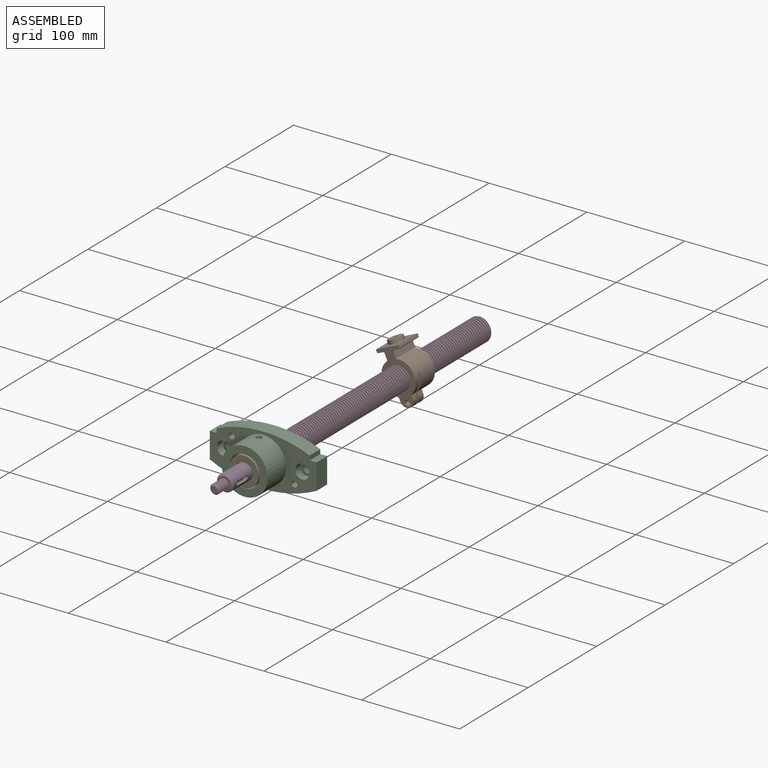
[diagram: assembled view]
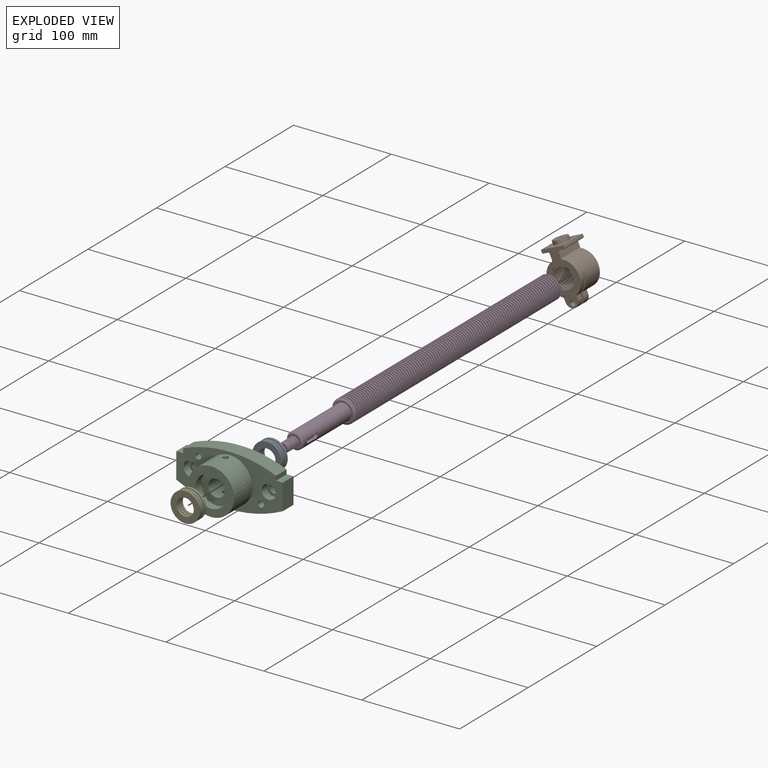
[diagram: exploded view]
GUIDED TOUR — MATED ASSEMBLY (Onshape document 585b79890dd57310976314a2, AutoMate assembly 585b79890dd57310976314a2_30762b4a6ced9e61a205f3cd_0f31b0dcdb93d55b40115a90_default)

This assembly has 5 components, labeled P0..P4 below (a component is one placed occurrence of a part; the same part can appear more than once), held together by 4 mates. A mate is a constraint between two components; its type names the relative motion it leaves free:
  CYLINDRICAL — leaves both rotation about and translation along the listed axis free,
  FASTENED — locks the two components together rigidly (no relative motion),
  REVOLUTE — leaves rotation about the listed axis free (a hinge).
Axis/direction vectors are unit vectors and 'through' points are millimeter coordinates, both in the assembly's world frame.

MATES
  1. REVOLUTE "Revolute 1": P0 <-> P2, axis (0.000, -1.000, 0.000) through (0.00, -10.00, 0.00) mm
  2. FASTENED "Fastened 1": P3 <-> P0, direction (0.000, -1.000, 0.000) through (0.00, -1.00, 0.00) mm
  3. FASTENED "Fastened 2": P2 <-> P4, direction (0.000, -1.000, 0.000) through (0.00, -34.50, 0.00) mm
  4. CYLINDRICAL "Cylindrical 1": P3 <-> P1, axis (0.000, -1.000, 0.000) through (0.00, 150.50, 0.00) mm

ASSEMBLY ORDER
  1. P0 — the base component [order heuristic]
  2. P2 [order heuristic]
  3. P3 [order heuristic]
  4. P1 [order heuristic]
  5. P4 [order heuristic]
Order-tag legend:
  [order heuristic] — this assembly is geometrically interlocked (no collision-free removal order exists), so components are listed in mate-graph order; insertion feasibility is not verified.

Of the 5 components, 3 carry the full construction recipe — the FeatureScript program that regenerates the part's solid from scratch; the rest are supplied as boundary geometry only.
Each toured component is shown spotlighted twice — in the assembled view, then in the exploded view, where a leader line traces a displaced component back to its assembled socket (saturated green if recipe-attached, orange if geometry-only; every other component desaturated gray) — followed by its recipe or geometry summary and the mates that hold it.
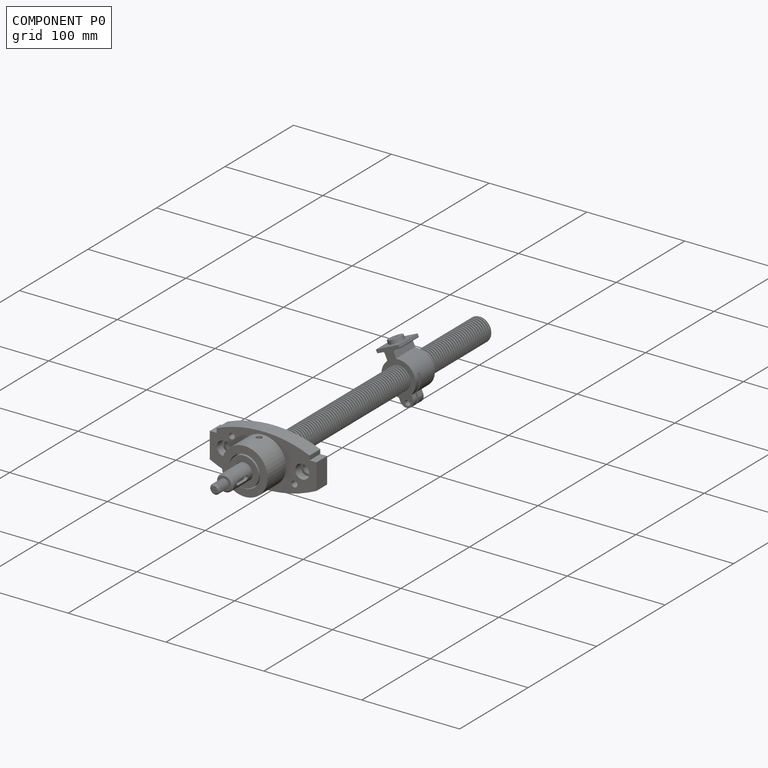
[diagram: component P0 — assembled]
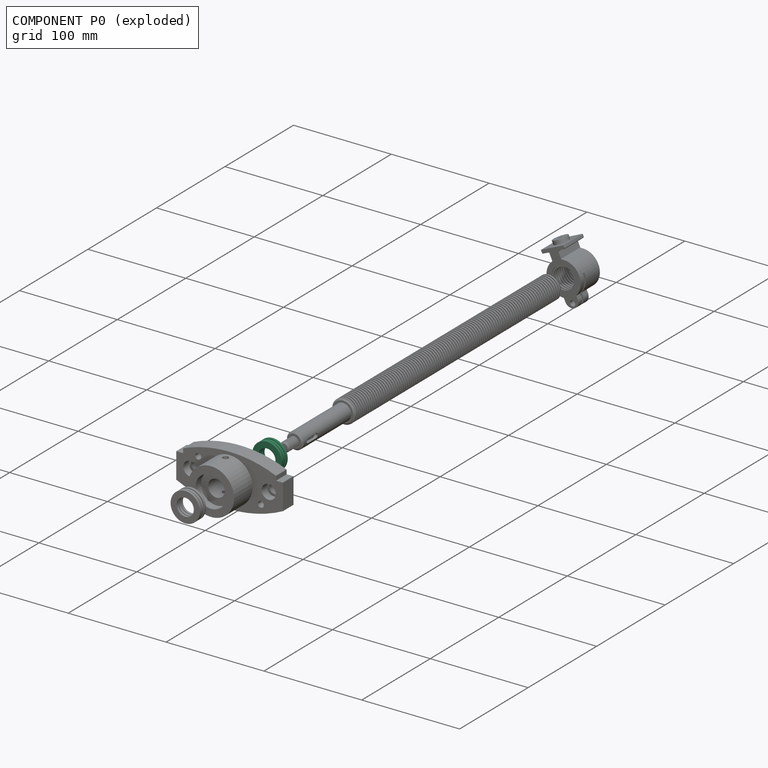
[diagram: component P0 — exploded]
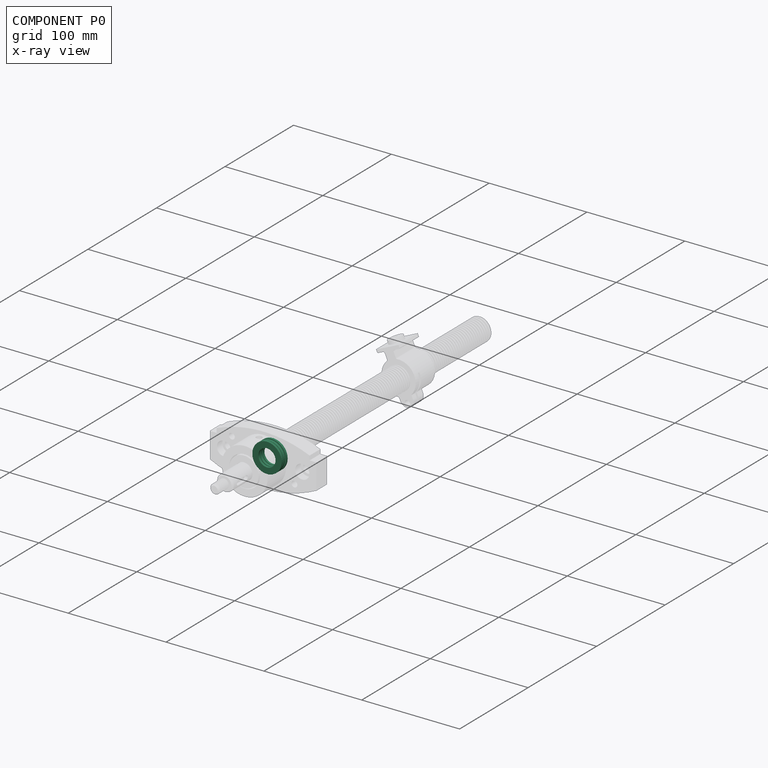
[diagram: component P0 — x-ray view]
COMPONENT P0 — recipe-attached (CADFS 00399992, mesh-verified: the recipe's output STEP matches this component's geometry to below the mesh-comparison resolution (tessellation chordal tolerance ~0.0651 mm)).
Held by: REVOLUTE mate "Revolute 1" to P2; FASTENED mate "Fastened 1" to P3.
Construction recipe (FeatureScript — the CAD program that rebuilds this solid; sketch coordinates are in the units given by the * unit suffixes, e.g. mm):

FeatureScript 2559;
import(path : "onshape/std/geometry.fs", version : "2559.0");
import(path : "onshape/std/common.fs", version : "2559.0");
const mm = millimeter;
const VERTEX = EntityType.VERTEX;
const EDGE = EntityType.EDGE;
const FACE = EntityType.FACE;
const BODY = EntityType.BODY;
function v(x, y){return vector(x, y);}
function OD(order){return orderDisambiguation(order);}
function OSD(set){return originalSetDisambiguation(set);}
function TD(topology){return topologyDisambiguation(topology);}
function TDD(query){return trueDependencyDisambiguation(query);}
function sQuery(a, b, c) {return sketchEntityQuery(a, b, c);}

annotation { "Feature Type Name" : "Feature", "Feature Type Description" : "" }
export const myFeature = defineFeature(function(context is Context, id is Id, definition is map)
    precondition{}
    {
        {
            var Q0;
            Q0=qCreatedBy(makeId("Front.planeOp"),FACE);
            var sketch = newSketch(context, id + "F0", { "sketchPlane" : qUnion([Q0])});
            skCircle(sketch, "E0", {"center": v(0, 0) * mm, "radius": 8.75 * mm});
            skCircle(sketch, "E1", {"center": v(0, 0) * mm, "radius": 14.65 * mm});
            skSolve(sketch);
        }
        {
            var Q0;
            Q0 = qSketchRegion(id + "F0", true);
            extrude(context, id + "F1", {"entities" : qUnion([Q0]), "depth" : 2.5 * mm, "symmetric" : true});
        }
        {
            var Q0;
            Q0=qCreatedBy(makeId("Front.planeOp"),FACE);
            var sketch = newSketch(context, id + "F2", { "sketchPlane" : qUnion([Q0])});
            skArc(sketch, "E2", {"start": v(0, 9.2) * mm, "mid": v(2.5, 11.7) * mm, "end": v(0, 14.2) * mm});
            skLineSegment(sketch, "E3", {"start": v(0, 14.2) * mm, "end": v(0, 9.2) * mm});
            skLineSegment(sketch, "E4", {"start": v(0, 11.7) * mm, "end": v(2.5, 11.7) * mm, "construction": true});
            skLineSegment(sketch, "E5", {"start": v(0, 8.75) * mm, "end": v(0, 14.65) * mm, "construction": true});
            skSolve(sketch);
        }
        {
            var Q0;
            Q0 = qSketchRegion(id + "F2", true);
            var Q1;
            Q1=sQuery(id+"F2.wireOp",EDGE,"E3");
            revolve(context, id + "F3", {"operationType" : NewBodyOperationType.ADD, "entities" : qUnion([Q0]), "axis" : qUnion([Q1]), "revolveType" : RevolveType.FULL});
        }
        {
            var Q0;
            Q0=makeQuery(id+"F1.opExtrude","SWEPT_BODY",BODY,{"disambiguationData":[OSD([sQuery(id+"F0.wireOp",EDGE,"E0"),sQuery(id+"F0.wireOp",EDGE,"E1")])]});
            var Q1;
            Q1=makeQuery(id+"F1.opExtrude","CAP_EDGE",EDGE,{"disambiguationData":[OSD([sQuery(id+"F0.wireOp",EDGE,"E1")])],"isStart":false});
            circularPattern(context, id + "F4", {"operationType" : NewBodyOperationType.ADD, "entities" : qUnion([Q0]), "axis" : qUnion([Q1]), "angle" : 360 * degree, "instanceCount" : 13, "equalSpace" : true, "computeTransformsWithoutBuiltin" : true});
        }
        {
            var Q0;
            Q0=qCreatedBy(makeId("Right.planeOp"),FACE);
            var sketch = newSketch(context, id + "F5", { "sketchPlane" : qUnion([Q0])});
            skLineSegment(sketch, "E6", {"start": v(2.2, 15) * mm, "end": v(4.5, 15) * mm});
            skLineSegment(sketch, "E7", {"start": v(4.5, 15) * mm, "end": v(4.5, 8.75) * mm});
            skLineSegment(sketch, "E8", {"start": v(0, 11.7) * mm, "end": v(0, 0) * mm, "construction": true});
            skLineSegment(sketch, "E9", {"start": v(2.2, 8.75) * mm, "end": v(4.5, 8.75) * mm});
            skLineSegment(sketch, "E10", {"start": v(0, 0) * mm, "end": v(4.5, 0) * mm, "construction": true});
            skLineSegment(sketch, "E11.MirrorCS", {"start": v(-2.2, 15) * mm, "end": v(-4.5, 15) * mm});
            skLineSegment(sketch, "E12.MirrorCS", {"start": v(-4.5, 15) * mm, "end": v(-4.5, 8.75) * mm});
            skLineSegment(sketch, "E13.MirrorCS", {"start": v(-2.2, 8.75) * mm, "end": v(-4.5, 8.75) * mm});
            skPoint(sketch, "E14.MirrorCS.end.orphan", {"position": v(-2.2, 15) * mm});
            skPoint(sketch, "E15.MirrorCS.start.orphan", {"position": v(-2.2, 8.75) * mm});
            skLineSegment(sketch, "E16", {"start": v(2.2, 15) * mm, "end": v(2.2, 8.75) * mm});
            skLineSegment(sketch, "E17.MirrorCS", {"start": v(-2.2, 15) * mm, "end": v(-2.2, 8.75) * mm});
            skSolve(sketch);
        }
        {
            var Q0;
            Q0=makeQuery(id+"F5.imprint","IMPRINT",FACE,{"disambiguationData":[TD([[makeQuery(id+"F5.imprint","IMPRINT",EDGE,{"derivedFrom":sQuery(id+"F5.wireOp",EDGE,"E6")}),-1.0]])]});
            var Q1;
            Q1=makeQuery(id+"F5.imprint","IMPRINT",FACE,{"disambiguationData":[TD([[makeQuery(id+"F5.imprint","IMPRINT",EDGE,{"derivedFrom":sQuery(id+"F5.wireOp",EDGE,"E11.MirrorCS")}),1.0]])]});
            var Q2;
            Q2=sQuery(id+"F5.wireOp",EDGE,"E10");
            revolve(context, id + "F6", {"operationType" : NewBodyOperationType.ADD, "entities" : qUnion([Q0, Q1]), "axis" : qUnion([Q2]), "revolveType" : RevolveType.FULL});
        }
    });
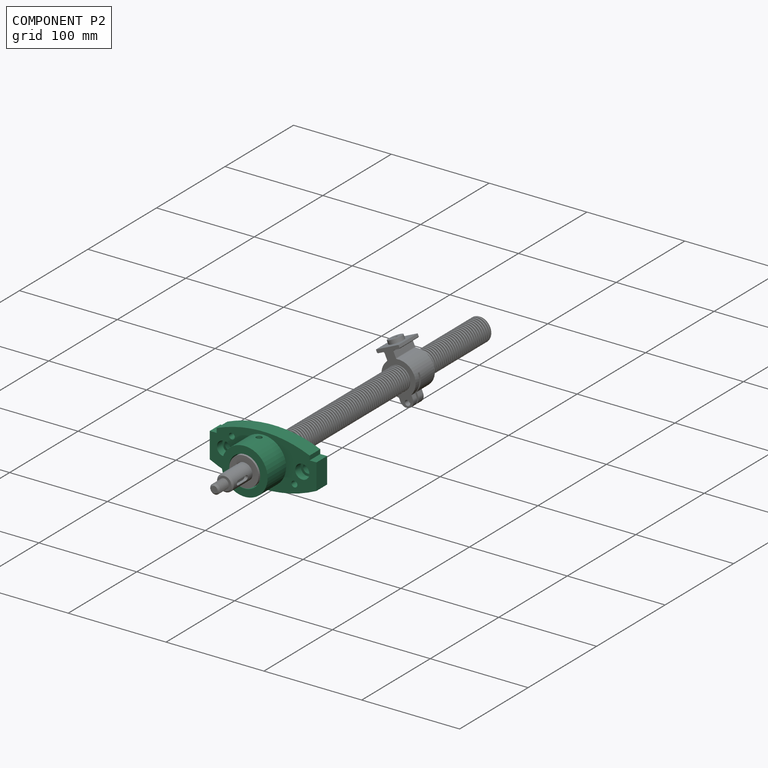
[diagram: component P2 — assembled]
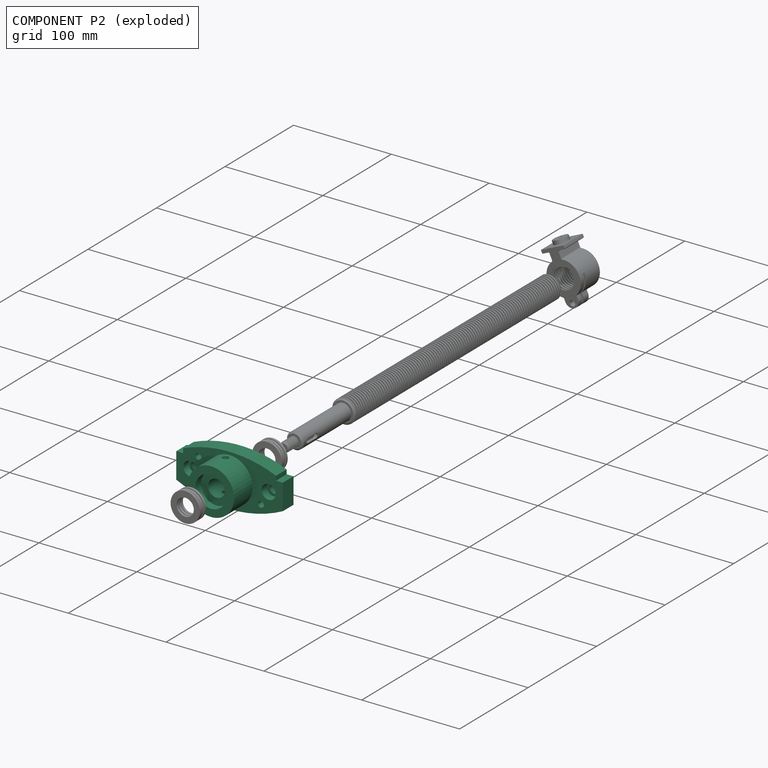
[diagram: component P2 — exploded]
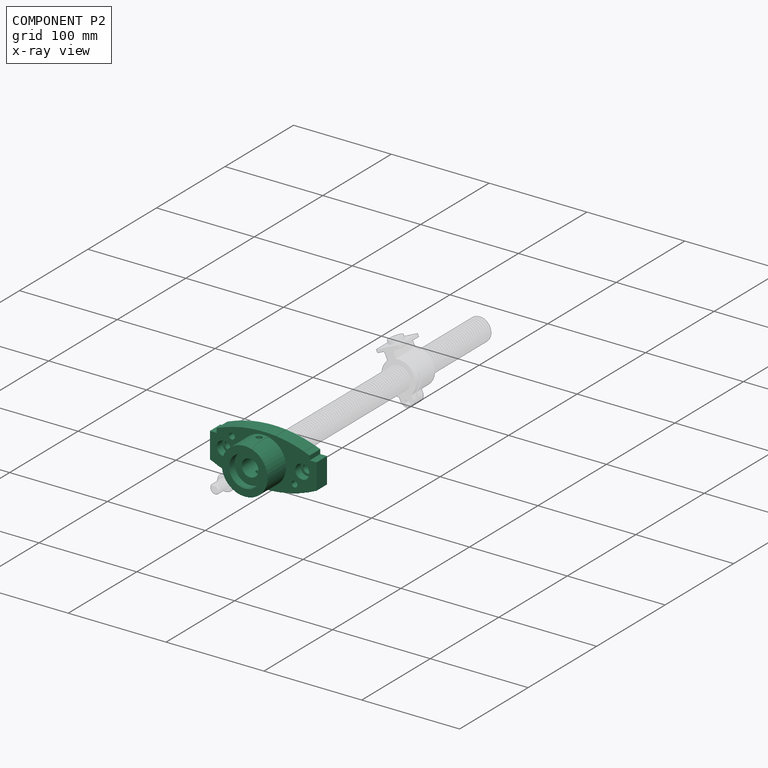
[diagram: component P2 — x-ray view]
COMPONENT P2 — recipe-attached (CADFS 00399984, mesh-verified: the recipe's output STEP matches this component's geometry to below the mesh-comparison resolution (tessellation chordal tolerance ~0.193 mm)).
Held by: REVOLUTE mate "Revolute 1" to P0; FASTENED mate "Fastened 2" to P4.
Construction recipe (FeatureScript — the CAD program that rebuilds this solid; sketch coordinates are in the units given by the * unit suffixes, e.g. mm):

FeatureScript 2559;
import(path : "onshape/std/geometry.fs", version : "2559.0");
import(path : "onshape/std/common.fs", version : "2559.0");
const mm = millimeter;
const VERTEX = EntityType.VERTEX;
const EDGE = EntityType.EDGE;
const FACE = EntityType.FACE;
const BODY = EntityType.BODY;
function v(x, y){return vector(x, y);}
function OD(order){return orderDisambiguation(order);}
function OSD(set){return originalSetDisambiguation(set);}
function TD(topology){return topologyDisambiguation(topology);}
function TDD(query){return trueDependencyDisambiguation(query);}
function sQuery(a, b, c) {return sketchEntityQuery(a, b, c);}

annotation { "Feature Type Name" : "Feature", "Feature Type Description" : "" }
export const myFeature = defineFeature(function(context is Context, id is Id, definition is map)
    precondition{}
    {
        {
            var Q0;
            Q0=qCreatedBy(makeId("Front.planeOp"),FACE);
            var sketch = newSketch(context, id + "F0", { "sketchPlane" : qUnion([Q0])});
            skLineSegment(sketch, "E0.bottom", {"start": v(54.5, -26.5) * mm, "end": v(-54.5, -26.5) * mm});
            skLineSegment(sketch, "E0.top", {"start": v(54.5, 26.5) * mm, "end": v(-54.5, 26.5) * mm, "construction": true});
            skLineSegment(sketch, "E0.left", {"start": v(54.5, -26.5) * mm, "end": v(54.5, 26.5) * mm});
            skLineSegment(sketch, "E0.right", {"start": v(-54.5, -26.5) * mm, "end": v(-54.5, 26.5) * mm});
            skPoint(sketch, "E0.middle", {"position": v(0, 0) * mm});
            skArc(sketch, "E1", {"start": v(47.5, 17) * mm, "mid": v(0, 26.5) * mm, "end": v(-47.5, 17) * mm});
            skArc(sketch, "E2", {"start": v(-54.5, -13.82) * mm, "mid": v(0, -26.5) * mm, "end": v(54.5, -13.82) * mm});
            skLineSegment(sketch, "E3", {"start": v(47.5, 17) * mm, "end": v(47.5, 12.5) * mm});
            skLineSegment(sketch, "E4", {"start": v(47.5, 12.5) * mm, "end": v(54.5, 12.5) * mm});
            skLineSegment(sketch, "E5", {"start": v(-47.5, 12.5) * mm, "end": v(-47.5, 17) * mm});
            skPoint(sketch, "E6.orphan", {"position": v(54.5, 13.82) * mm});
            skPoint(sketch, "E7.orphan", {"position": v(-54.5, 13.82) * mm});
            skLineSegment(sketch, "E8", {"start": v(-47.5, 12.5) * mm, "end": v(-54.5, 12.5) * mm});
            skLineSegment(sketch, "E9", {"start": v(47.5, 12.5) * mm, "end": v(47.5, -17) * mm, "construction": true});
            skCircle(sketch, "E10", {"center": v(0, 0) * mm, "radius": 8.6 * mm});
            skCircle(sketch, "E11", {"center": v(-40, 0) * mm, "radius": 4.75 * mm});
            skCircle(sketch, "E12", {"center": v(40, 0) * mm, "radius": 4.75 * mm});
            skLineSegment(sketch, "E13", {"start": v(0, 0) * mm, "end": v(0, 26.5) * mm, "construction": true});
            skPoint(sketch, "E13.endSnap0", {"position": v(0, 26.5) * mm});
            skSolve(sketch);
        }
        {
            var Q0;
            Q0=makeQuery(id+"F0.imprint","IMPRINT",FACE,{"disambiguationData":[TD([[makeQuery(id+"F0.imprint","IMPRINT",EDGE,{"derivedFrom":sQuery(id+"F0.wireOp",EDGE,"E1")}),1.0]])]});
            var Q1;
            Q1=makeQuery(id+"F0.imprint","IMPRINT",FACE,{"disambiguationData":[TD([[makeQuery(id+"F0.imprint","IMPRINT",EDGE,{"derivedFrom":sQuery(id+"F0.wireOp",EDGE,"E10")}),-1.0]])]});
            extrude(context, id + "F1", {"entities" : qUnion([Q0, Q1]), "depth" : 15.5 * mm});
        }
        {
            var Q0;
            Q0=makeQuery(id+"F1.opExtrude","CAP_FACE",FACE,{"disambiguationData":[OSD([sQuery(id+"F0.wireOp",EDGE,"E0.left"),sQuery(id+"F0.wireOp",EDGE,"E0.right"),sQuery(id+"F0.wireOp",EDGE,"E1"),sQuery(id+"F0.wireOp",EDGE,"E2"),sQuery(id+"F0.wireOp",EDGE,"E3"),sQuery(id+"F0.wireOp",EDGE,"E4"),sQuery(id+"F0.wireOp",EDGE,"E5"),sQuery(id+"F0.wireOp",EDGE,"E8"),sQuery(id+"F0.wireOp",EDGE,"E10"),sQuery(id+"F0.wireOp",EDGE,"E11"),sQuery(id+"F0.wireOp",EDGE,"E12")])],"isStart":false});
            var sketch = newSketch(context, id + "F2", { "sketchPlane" : qUnion([Q0])});
            skCircle(sketch, "E14", {"center": v(-40, 0) * mm, "radius": 7.25 * mm});
            skCircle(sketch, "E15", {"center": v(40, 0) * mm, "radius": 7.25 * mm});
            skSolve(sketch);
        }
        {
            var Q0;
            Q0=qSketchRegion(id+"F2",true);
            extrude(context, id + "F3", {"entities" : qUnion([Q0]), "operationType" : NewBodyOperationType.REMOVE, "oppositeDirection" : true, "depth" : 8 * mm});
        }
        {
            var Q0;
            Q0=makeQuery(id+"F1.opExtrude","CAP_FACE",FACE,{"disambiguationData":[OSD([sQuery(id+"F0.wireOp",EDGE,"E0.left"),sQuery(id+"F0.wireOp",EDGE,"E0.right"),sQuery(id+"F0.wireOp",EDGE,"E1"),sQuery(id+"F0.wireOp",EDGE,"E2"),sQuery(id+"F0.wireOp",EDGE,"E3"),sQuery(id+"F0.wireOp",EDGE,"E4"),sQuery(id+"F0.wireOp",EDGE,"E5"),sQuery(id+"F0.wireOp",EDGE,"E8"),sQuery(id+"F0.wireOp",EDGE,"E10"),sQuery(id+"F0.wireOp",EDGE,"E11"),sQuery(id+"F0.wireOp",EDGE,"E12")])],"isStart":false});
            var sketch = newSketch(context, id + "F4", { "sketchPlane" : qUnion([Q0])});
            skCircle(sketch, "E16", {"center": v(0, 0) * mm, "radius": 23.5 * mm});
            skCircle(sketch, "E17", {"center": v(0, 0) * mm, "radius": 8.6 * mm});
            skSolve(sketch);
        }
        {
            var Q0;
            Q0=qSketchRegion(id+"F4",true);
            extrude(context, id + "F5", {"entities" : qUnion([Q0]), "operationType" : NewBodyOperationType.ADD, "depth" : (42.5 - 15.5) * mm});
        }
        {
            var Q0;
            Q0=makeQuery(id+"F5.opExtrude","CAP_FACE",FACE,{"disambiguationData":[OSD([sQuery(id+"F4.wireOp",EDGE,"E16"),sQuery(id+"F4.wireOp",EDGE,"E17")])],"isStart":false});
            var sketch = newSketch(context, id + "F6", { "sketchPlane" : qUnion([Q0])});
            skCircle(sketch, "E18", {"center": v(0, 0) * mm, "radius": 15.88 * mm});
            skSolve(sketch);
        }
        {
            var Q0;
            Q0=qSketchRegion(id+"F6",true);
            extrude(context, id + "F7", {"entities" : qUnion([Q0]), "operationType" : NewBodyOperationType.REMOVE, "oppositeDirection" : true, "depth" : 8 * mm});
        }
        {
            var Q0;
            Q0=makeQuery(id+"F1.opExtrude","CAP_FACE",FACE,{"disambiguationData":[OSD([sQuery(id+"F0.wireOp",EDGE,"E0.left"),sQuery(id+"F0.wireOp",EDGE,"E0.right"),sQuery(id+"F0.wireOp",EDGE,"E1"),sQuery(id+"F0.wireOp",EDGE,"E2"),sQuery(id+"F0.wireOp",EDGE,"E3"),sQuery(id+"F0.wireOp",EDGE,"E4"),sQuery(id+"F0.wireOp",EDGE,"E5"),sQuery(id+"F0.wireOp",EDGE,"E8"),sQuery(id+"F0.wireOp",EDGE,"E10"),sQuery(id+"F0.wireOp",EDGE,"E11"),sQuery(id+"F0.wireOp",EDGE,"E12")])],"isStart":true});
            var sketch = newSketch(context, id + "F8", { "sketchPlane" : qUnion([Q0])});
            skCircle(sketch, "E19", {"center": v(0, 0) * mm, "radius": 15.88 * mm});
            skSolve(sketch);
        }
        {
            var Q0;
            Q0=qSketchRegion(id+"F8",true);
            extrude(context, id + "F9", {"entities" : qUnion([Q0]), "operationType" : NewBodyOperationType.REMOVE, "oppositeDirection" : true, "depth" : 10 * mm});
        }
        {
            var Q0;
            Q0=makeQuery(id+"F1.opExtrude","CAP_EDGE",EDGE,{"disambiguationData":[OSD([sQuery(id+"F0.wireOp",EDGE,"E0.right")])],"isStart":false});
            cPoint(context, id + "F10", {"entities" : qUnion([Q0]), "parameter" : 0.5});
        }
        {
            var Q0;
            Q0=makeQuery(id+"F1.opExtrude","CAP_EDGE",EDGE,{"disambiguationData":[OSD([sQuery(id+"F0.wireOp",EDGE,"E0.right")])],"isStart":true});
            cPoint(context, id + "F11", {"entities" : qUnion([Q0]), "parameter" : 0.5});
        }
        {
            var Q0;
            Q0=makeQuery(id+"F1.opExtrude","CAP_EDGE",EDGE,{"disambiguationData":[OSD([sQuery(id+"F0.wireOp",EDGE,"E0.left")])],"isStart":false});
            cPoint(context, id + "F12", {"entities" : qUnion([Q0]), "parameter" : 0.5});
        }
        {
            var Q0;
            Q0=qCreatedBy(id+"F10",VERTEX);
            var Q1;
            Q1=qCreatedBy(id+"F11",VERTEX);
            var Q2;
            Q2=qCreatedBy(id+"F12",VERTEX);
            cPlane(context, id + "F13", {"entities" : qUnion([Q0, Q1, Q2]), "cplaneType" : CPlaneType.THREE_POINT, "offset" : 25 * mm, "width" : 150 * mm, "height" : 150 * mm});
        }
        {
            var Q0;
            Q0=qCreatedBy(id+"F13.planeOp",FACE);
            var sketch = newSketch(context, id + "F14", { "sketchPlane" : qUnion([Q0])});
            skCircle(sketch, "E20", {"center": v(0, -21.5) * mm, "radius": 3 * mm});
            skSolve(sketch);
        }
        {
            var Q0;
            Q0=makeQuery(id+"F14.imprint","IMPRINT",FACE,{"disambiguationData":[TD([[makeQuery(id+"F14.imprint","IMPRINT",EDGE,{"derivedFrom":sQuery(id+"F14.wireOp",EDGE,"E20")}),1.0]])]});
            extrude(context, id + "F15", {"entities" : qUnion([Q0]), "operationType" : NewBodyOperationType.REMOVE, "depth" : 25 * mm, "hasSecondDirection" : true, "secondDirectionOppositeDirection" : true, "secondDirectionDepth" : 25 * mm});
        }
        {
            var Q0;
            Q0=makeQuery(id+"F1.opExtrude","CAP_FACE",FACE,{"disambiguationData":[OSD([sQuery(id+"F0.wireOp",EDGE,"E0.left"),sQuery(id+"F0.wireOp",EDGE,"E0.right"),sQuery(id+"F0.wireOp",EDGE,"E1"),sQuery(id+"F0.wireOp",EDGE,"E2"),sQuery(id+"F0.wireOp",EDGE,"E3"),sQuery(id+"F0.wireOp",EDGE,"E4"),sQuery(id+"F0.wireOp",EDGE,"E5"),sQuery(id+"F0.wireOp",EDGE,"E8"),sQuery(id+"F0.wireOp",EDGE,"E10"),sQuery(id+"F0.wireOp",EDGE,"E11"),sQuery(id+"F0.wireOp",EDGE,"E12")])],"isStart":false});
            var sketch = newSketch(context, id + "F16", { "sketchPlane" : qUnion([Q0])});
            skCircle(sketch, "E21", {"center": v(-31.99, 13.58) * mm, "radius": 3 * mm});
            skCircle(sketch, "E22", {"center": v(31.99, -13.58) * mm, "radius": 3 * mm});
            skLineSegment(sketch, "E23", {"start": v(-31.99, 13.58) * mm, "end": v(31.99, -13.58) * mm, "construction": true});
            skCircle(sketch, "E24", {"center": v(0, 0) * mm, "radius": 3 * mm, "construction": true});
            skLineSegment(sketch, "E25", {"start": v(0, 0) * mm, "end": v(-31.99, 0) * mm, "construction": true});
            skSolve(sketch);
        }
        {
            var Q0;
            Q0=qSketchRegion(id+"F16",true);
            extrude(context, id + "F17", {"entities" : qUnion([Q0]), "operationType" : NewBodyOperationType.REMOVE, "endBound" : BoundingType.UP_TO_NEXT, "oppositeDirection" : true, "depth" : 25 * mm});
        }
    });
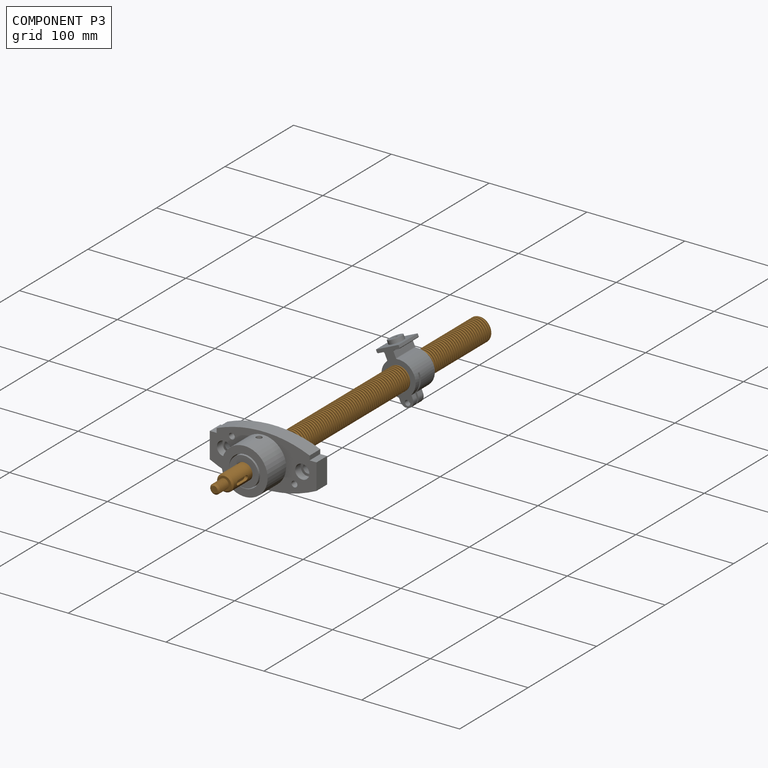
[diagram: component P3 — assembled]
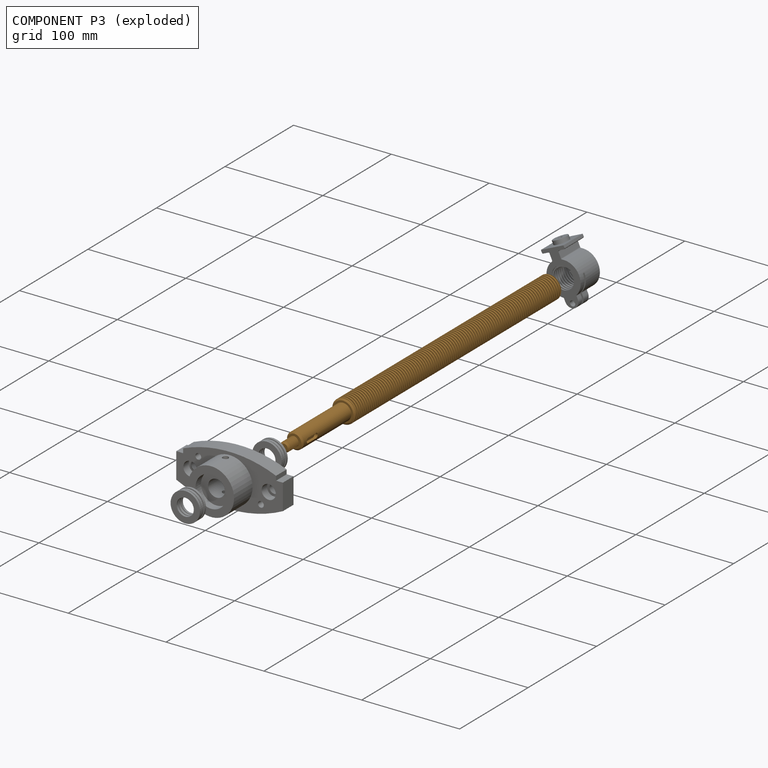
[diagram: component P3 — exploded]
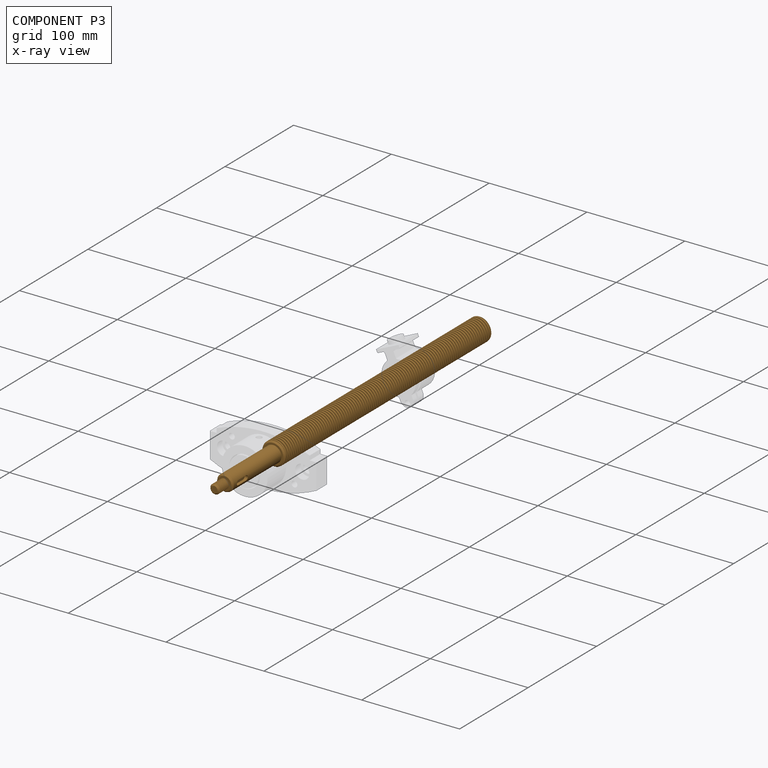
[diagram: component P3 — x-ray view]
COMPONENT P3 — geometry summary (no construction recipe available for this part):
  bounding box: 389.4 x 28.1 x 24.4 mm
  B-rep topology: 1 solid, 25 faces, 100 edges
  volume: 147180 mm^3 (55% of its bounding box)
  symmetry: revolution-symmetric about the y axis through its bounding-box center; mirror-symmetric across its x mid-plane
Held by: FASTENED mate "Fastened 1" to P0; CYLINDRICAL mate "Cylindrical 1" to P1.
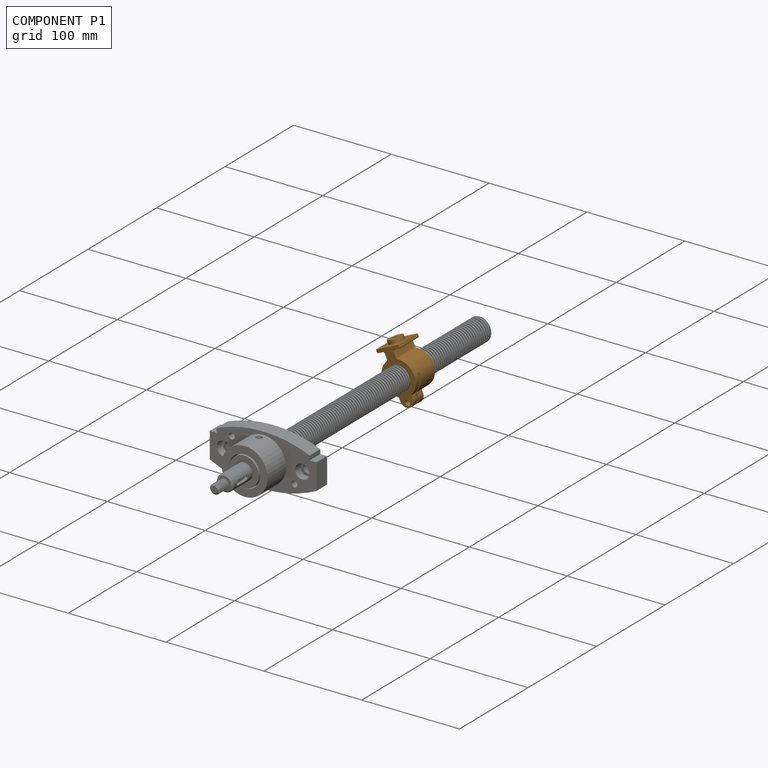
[diagram: component P1 — assembled]
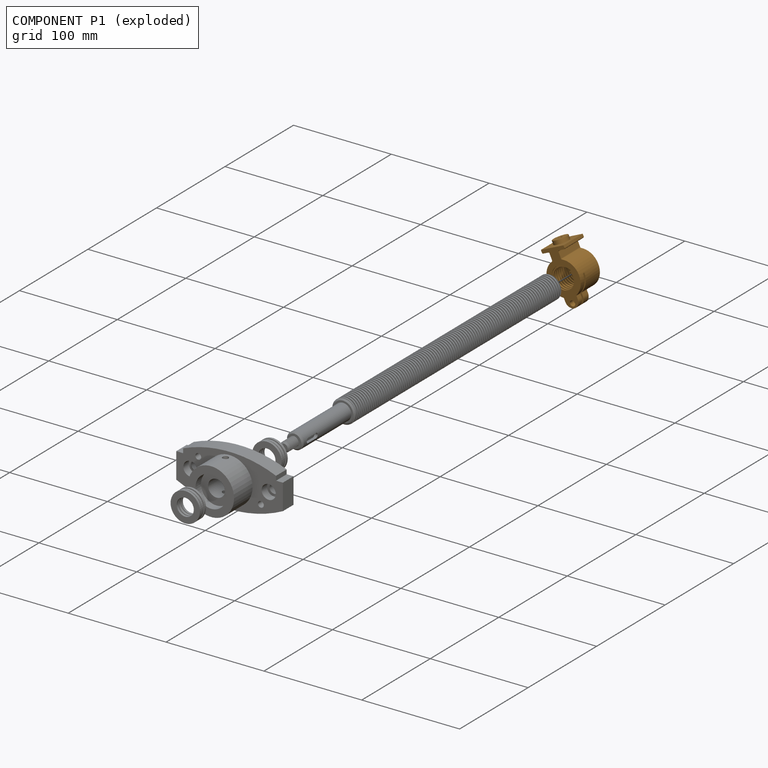
[diagram: component P1 — exploded]
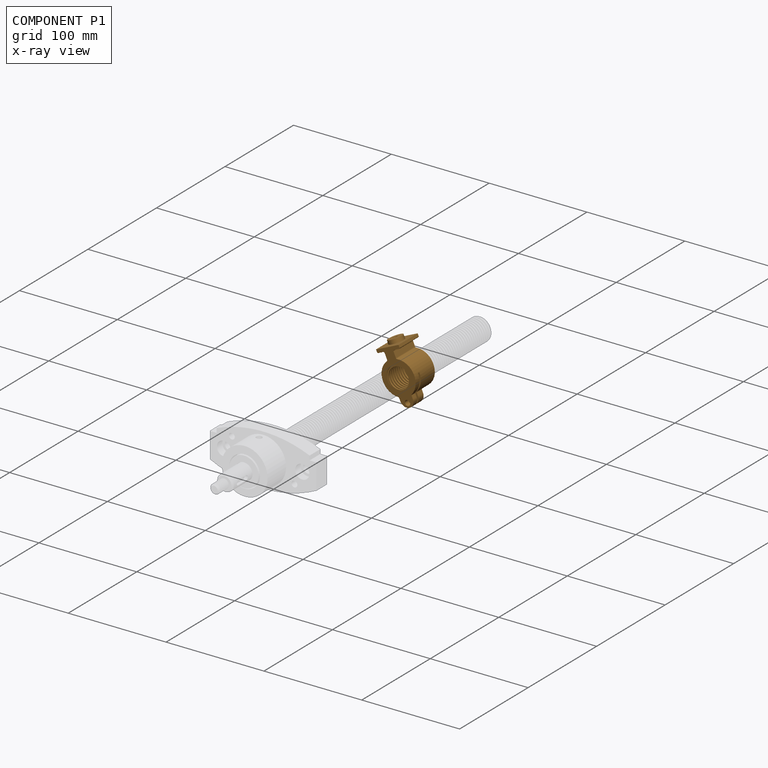
[diagram: component P1 — x-ray view]
COMPONENT P1 — geometry summary (no construction recipe available for this part):
  bounding box: 59.0 x 35.0 x 28.5 mm
  B-rep topology: 1 solid, 43 faces, 239 edges
  volume: 21548 mm^3 (37% of its bounding box)
Held by: CYLINDRICAL mate "Cylindrical 1" to P3.
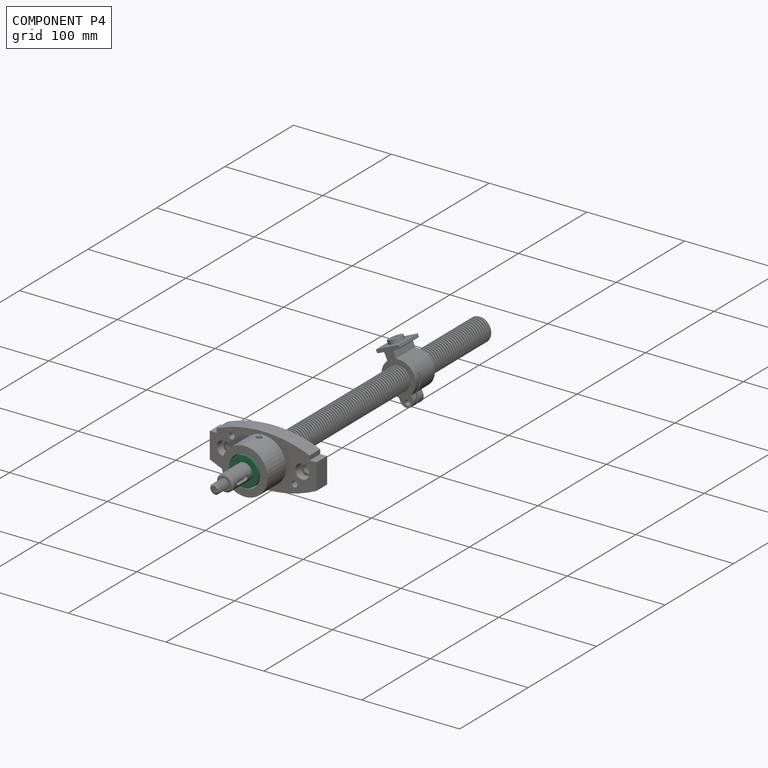
[diagram: component P4 — assembled]
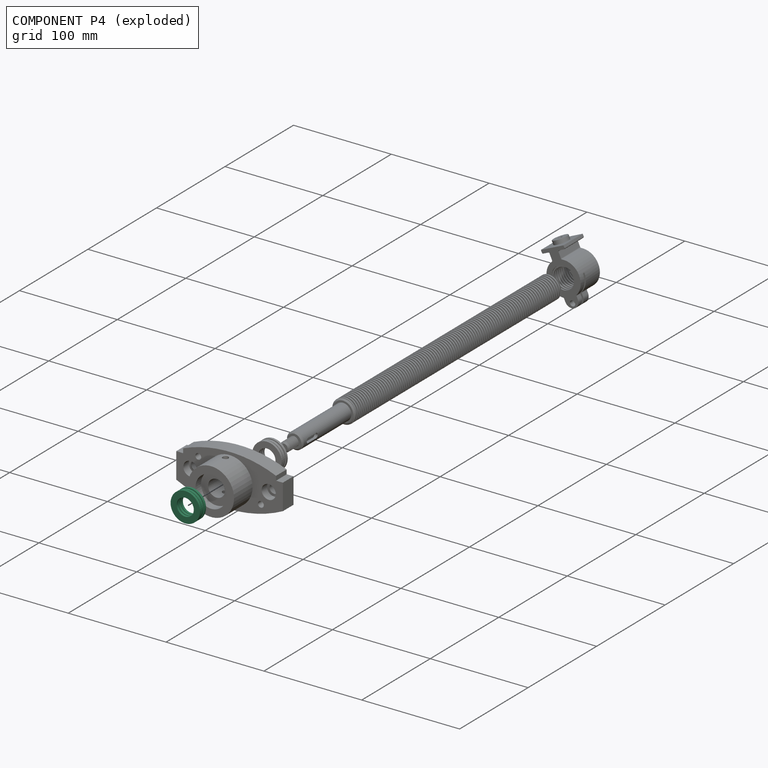
[diagram: component P4 — exploded]
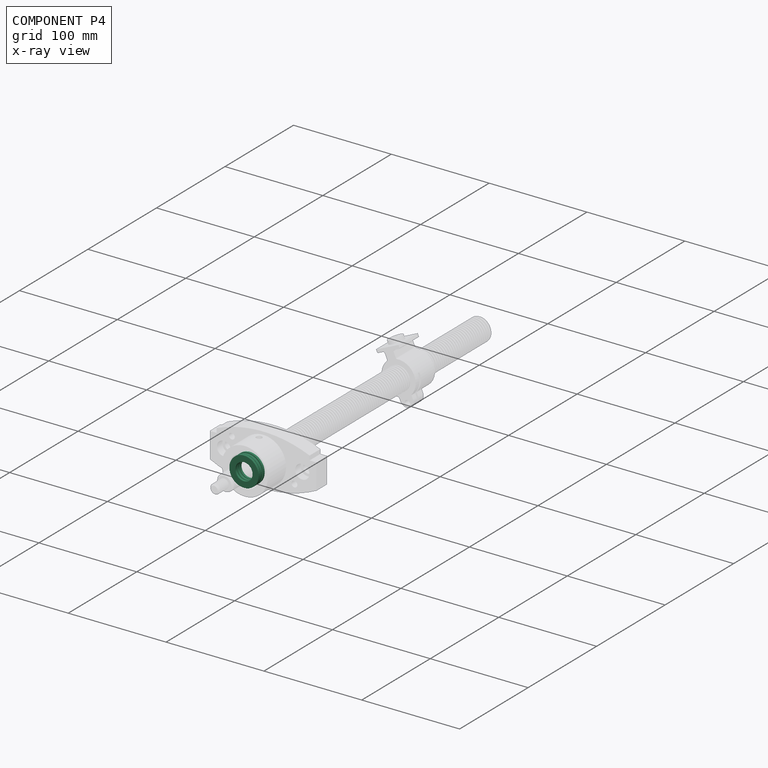
[diagram: component P4 — x-ray view]
COMPONENT P4 — same part as P0 (CADFS 00399992); its construction recipe is shown at P0.
Held by: FASTENED mate "Fastened 2" to P2.
PROVENANCE & LICENSES
Assembly (occurrences, transforms, mates, per-part STEP geometry): AutoMate dataset, Zenodo record 7776208, CC0.
Construction recipes: CADFS (HuggingFace VladPyatov/CADFS, CC-BY-4.0, layered over the ABC dataset), FeatureScript reconstruction programs keyed by ABC model id.
Join: ABC meta listings map ABC model id -> Onshape documentId; within a shared document, parts are matched by geometric signature (bounding-box dims + volume at 0.1% relative tolerance, exact B-rep face/solid counts).
Verification: 3 of this assembly's 5 components carry a recipe attachment, and every attachment is mesh-verified: the CADFS STEP and the AutoMate member STEP were compared as meshes in their shared local frame (symmetric sampled-point-to-mesh distance); worst across the 3 attachments: below the mesh-comparison resolution (tessellation chordal tolerance ~0.193 mm) on a 128 mm part.
Renders: orthographic iso camera (az 35 / el 25); the floor grid conveys scale (grid pitch printed in each image; no ruler). In the exploded view each component is displaced by its stored offset vector: the offsets alone carry the explosion direction (mate normal/axis signs are not orientation cues and do not encode it), and separation distances are assigned per mate-chain, not proportionally to assembly-order depth.
